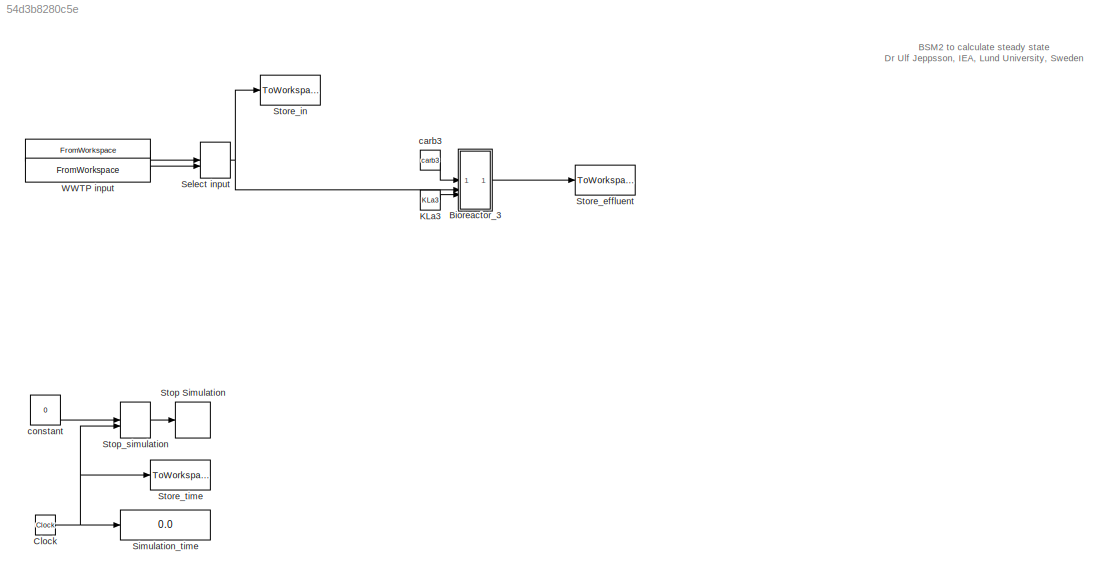
MODEL slx_54d3b8280c5e
KIND model
CONFIG AbsTol = 1e-8
CONFIG EnableMultiTasking = off
CONFIG FixedStep = 0.01
CONFIG MaxStep = auto
CONFIG MinStep = auto
CONFIG RelTol = 1e-5
CONFIG SampleTimeConstraint = Unconstrained
CONFIG SolverName = ode15s
CONFIG StartTime = 0.0
CONFIG StopTime = 50
BLOCK [FromWorkspace]  
  OutputAfterFinalValue = Holding final value
  SampleTime = -1
  VariableName = CONSTINFLUENT_BSM2
  ZeroCross = off
BLOCK [Constant]  constant
  Value = 0
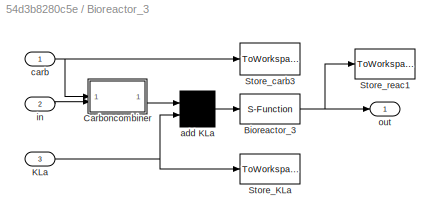
BLOCK [SubSystem] Bioreactor_3
BLOCK [S-Function] Bioreactor_3/Bioreactor_3
  EnableBusSupport = off
  FunctionName = asm1_bsm2
  Parameters = XINIT3,PAR3,VOL3,SOSAT3,TEMPMODEL,ACTIVATE
  SFcnIsStateOwnerBlock = off
  SFunctionDeploymentMode = off
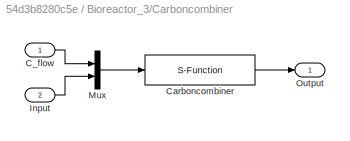
BLOCK [SubSystem] Bioreactor_3/Carboncombiner
BLOCK [Inport] Bioreactor_3/Carboncombiner/C_flow
BLOCK [S-Function] Bioreactor_3/Carboncombiner/Carboncombiner
  EnableBusSupport = off
  FunctionName = carboncombiner_bsm2
  Parameters = CARBONSOURCECONC
  SFcnIsStateOwnerBlock = off
  SFunctionDeploymentMode = off
BLOCK [Inport] Bioreactor_3/Carboncombiner/Input
  Port = 2
BLOCK [Mux] Bioreactor_3/Carboncombiner/Mux
  DisplayOption = bar
  Inputs = 2
BLOCK [Outport] Bioreactor_3/Carboncombiner/Output
BLOCK [Inport] Bioreactor_3/KLa
  Port = 3
BLOCK [ToWorkspace] Bioreactor_3/Store_KLa
  MaxDataPoints = inf
  SampleTime = -1
  VariableName = kla3in
BLOCK [ToWorkspace] Bioreactor_3/Store_carb3
  MaxDataPoints = inf
  SampleTime = -1
  VariableName = carbon3in
BLOCK [ToWorkspace] Bioreactor_3/Store_reac1
  MaxDataPoints = inf
  SampleTime = -1
  VariableName = reac3
BLOCK [Mux] Bioreactor_3/add KLa
  Inputs = 2
BLOCK [Inport] Bioreactor_3/carb
BLOCK [Inport] Bioreactor_3/in
  Port = 2
BLOCK [Outport] Bioreactor_3/out
BLOCK [Clock] Clock
BLOCK [Constant] KLa3
  Value = KLa3
BLOCK [ManualSwitch] Select input
BLOCK [Display] Simulation_time
  Decimation = 1
BLOCK [Stop] Stop Simulation
BLOCK [ManualSwitch] Stop_simulation
BLOCK [ToWorkspace] Store_effluent
  MaxDataPoints = inf
  VariableName = effluent
BLOCK [ToWorkspace] Store_in
  MaxDataPoints = inf
  VariableName = in
BLOCK [ToWorkspace] Store_time
  MaxDataPoints = inf
  VariableName = time
BLOCK [FromWorkspace] WWTP input
  OutputAfterFinalValue = Holding final value
  SampleTime = -1
  VariableName = DYNINFLUENT_BSM2
  ZeroCross = off
BLOCK [Constant] carb3
  NameLocation = top
  Value = carb3
ANNOTATION (root): BSM2 to calculate steady state Dr Ulf Jeppsson, IEA, Lund University, Sweden
LINE  :1 -> Select input:1
LINE  constant:1 -> Stop_simulation:1
NET Bioreactor_3/Bioreactor_3:1 -> Bioreactor_3/Store_reac1:1, Bioreactor_3/out:1
LINE Bioreactor_3/Carboncombiner/C_flow:1 -> Bioreactor_3/Carboncombiner/Mux:1
LINE Bioreactor_3/Carboncombiner/Carboncombiner:1 -> Bioreactor_3/Carboncombiner/Output:1
LINE Bioreactor_3/Carboncombiner/Input:1 -> Bioreactor_3/Carboncombiner/Mux:2
LINE Bioreactor_3/Carboncombiner/Mux:1 -> Bioreactor_3/Carboncombiner/Carboncombiner:1
LINE Bioreactor_3/Carboncombiner:1 -> Bioreactor_3/add KLa:1
NET Bioreactor_3/KLa:1 -> Bioreactor_3/Store_KLa:1, Bioreactor_3/add KLa:2
LINE Bioreactor_3/add KLa:1 -> Bioreactor_3/Bioreactor_3:1
NET Bioreactor_3/carb:1 -> Bioreactor_3/Carboncombiner:1, Bioreactor_3/Store_carb3:1
LINE Bioreactor_3/in:1 -> Bioreactor_3/Carboncombiner:2
LINE Bioreactor_3:1 -> Store_effluent:1
NET Clock:1 -> Simulation_time:1, Stop_simulation:2, Store_time:1
LINE KLa3:1 -> Bioreactor_3:3
NET Select input:1 -> Bioreactor_3:2, Store_in:1
LINE Stop_simulation:1 -> Stop Simulation:1
LINE WWTP input:1 -> Select input:2
LINE carb3:1 -> Bioreactor_3:1
note: NET lines group one-source signal fan-out (src -> all destinations, sorted); 1:1 wires keep LINE
